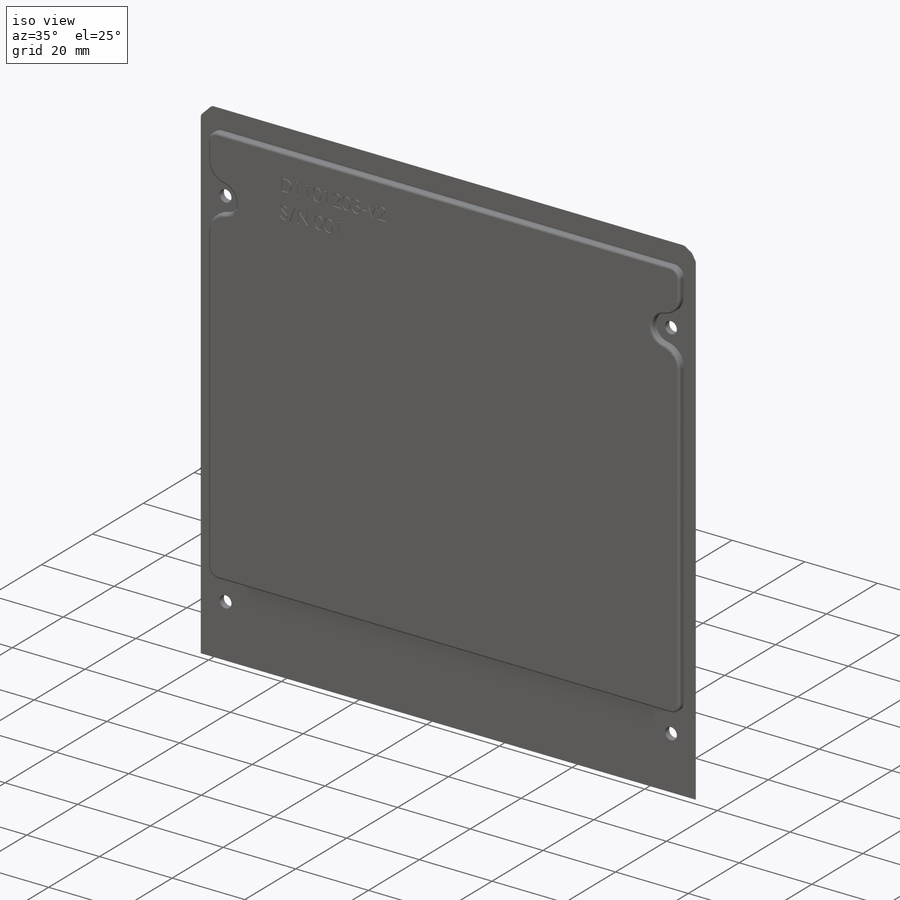
[diagram: iso view]
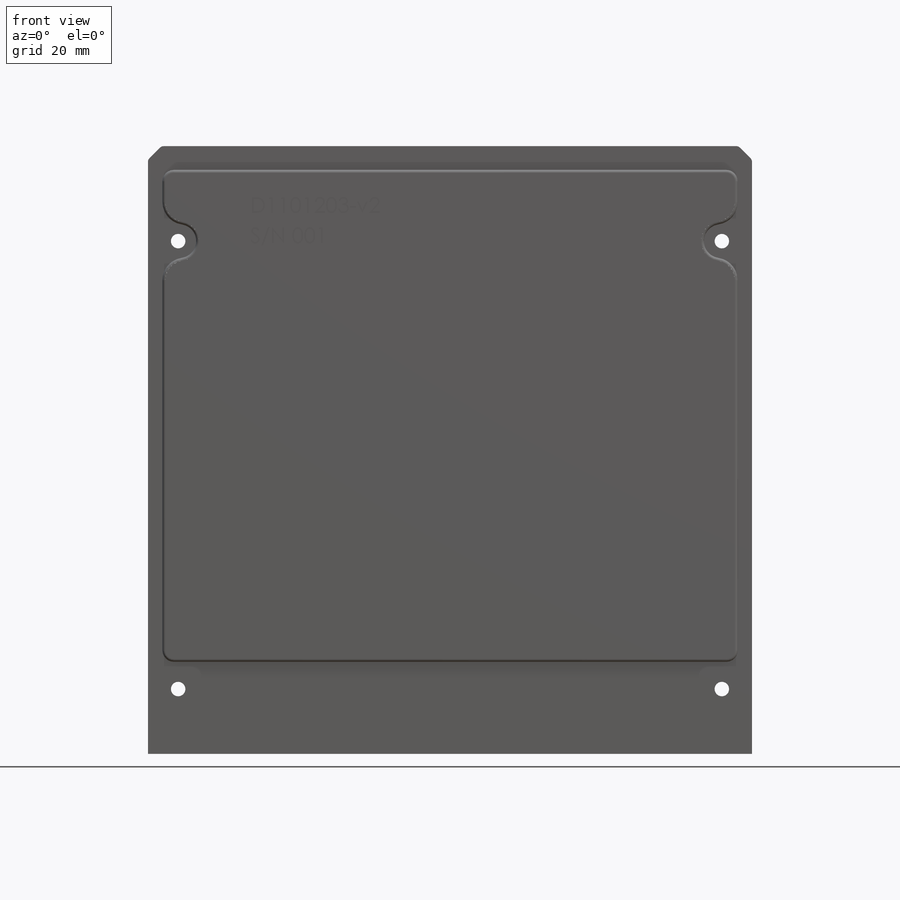
[diagram: front view]
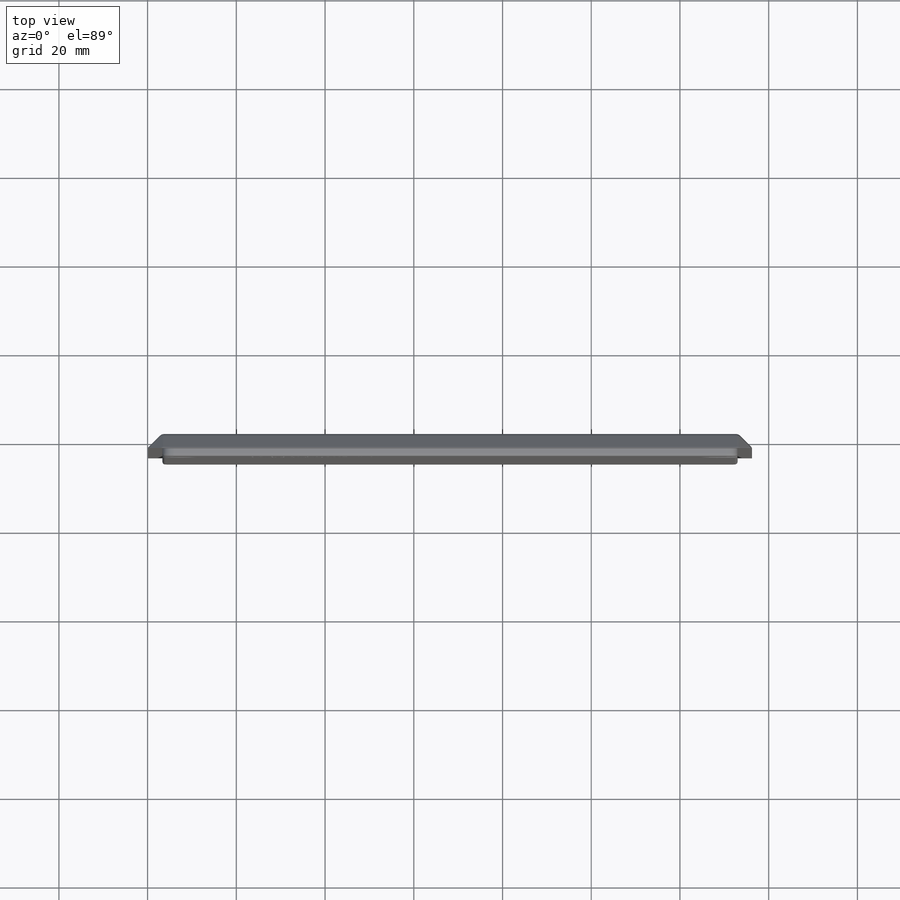
[diagram: top view]
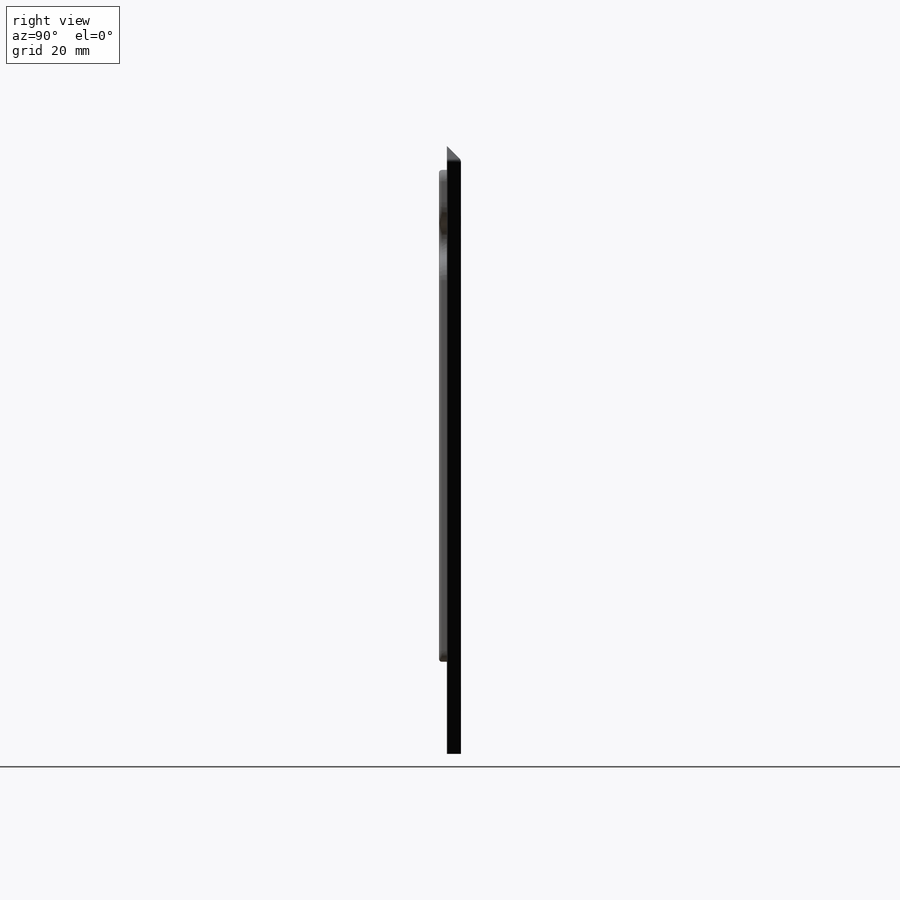
[diagram: right view]
SOLIDWORKS PART (.sldprt)
format: sldprt  version: not decoded by parser v0  size: 789,504 bytes
history: native  units: mm
features: sketch x5, fillet x4, extrude x2, chamfer x2, material x1, hole x1, cut_extrude x1 + 1 further entry (+10 scaffold rows collapsed)
feature tree (27):
  scaffold x10  (default folders/planes/origin — collapsed)
  material  "Material <not specified>"
  "Origin"  ID=392984584
  sketch  "Sketch1"  dims[D1=137.0584mm D2=136.3218mm]
  extrude  "Boss-Extrude1"  Depth=3.175mm
  chamfer  "Chamfer1"  Distance=3.175mm Angle=45deg
  fillet  "Fillet1"  Radius=1.27mm
  sketch  "Sketch6"  dims[c1.D5=7.62mm c1.D6=7.62mm c1.D1=4.7625mm c1.D2=110.871mm c1.D3=129.667mm c1.D4=6.6802mm c2.D1=3.3274mm c2.D5=19.3548mm c2.D4=20.7518mm c2.D7=122.047mm c2.D8=115.57mm c2.D9=115.57mm c2.D10=3.81mm c2.D11=3.81mm c2.D12=3.3274mm]
  extrude  "Boss-Extrude2"  Depth=1.778mm
  fillet  "Fillet3"  Radius=5.08mm
  hole  "CBORE for #4 Button Head Cap Screw1"  Diameter=3.2639mm Depth=4.953mm
  sketch  "Sketch8"  dims[c1.D1=3.175mm c1.D2=3.175mm c1.D3=3.175mm c1.D4=24.4475mm c1.D5=3.175mm c1.D6=24.4475mm c1.D7=3.175mm c1.D8=3.175mm c1.D9=33.655mm c1.D10=33.655mm c1.D11=24.4602mm c1.D12=24.4602mm c1.D13=3.175mm c1.D14=33.655mm c1.D15=33.655mm c1.D16=33.655mm c2.D3=119.38mm c2.D4=3.175mm c2.D6=119.38mm c2.D7=14.605mm c2.D8=14.605mm c2.D1=6.8834mm c2.D2=6.8834mm c3.D3=6.8072mm c3.D4=6.8834mm c3.D5=14.605mm c3.D6=14.605mm c3.D9=~104.248949mm c3.D7=14.605mm c3.D8=14.605mm c4.D9=103.505mm c4.D10=~18.306051mm c4.D5=21.59mm c4.D6=21.59mm c5.D9=103.505mm c5.D6=115.57mm c5.D5=115.57mm c5.D3=122.7074mm c6.D9=6.8834mm c6.D3=122.555mm]
  sketch  "Sketch7"  dims[hole-wizard template sketch: 42 standard entries collapsed; hole parameters kept: c12.Thru Hole Depth=4.953mm c12.C'Bore Dia.=6.35mm c12.C'Bore Depth=1.4986mm c12.Near C'Sink Dia.=~6.82752mm c12.D6=~4.399409mm c12.Near C'Sink Angle=90.0deg]
  chamfer  "Chamfer2"  Distance=0.254mm Angle=15deg
  fillet  "Fillet5"  Radius=2.54mm
  fillet  "Fillet4"  Radius=0.635mm
  sketch  "Sketch9"
  cut_extrude  "Cut-Extrude1"  Depth=0.254mm
decode coverage: 14 of 15 modeling features carry decoded parameters; 1 rows unclassified (native names shown)
note: ~ marks probable driven/reference dimensions
note: suppression state not decoded; provenance and decode notes live in map.json
